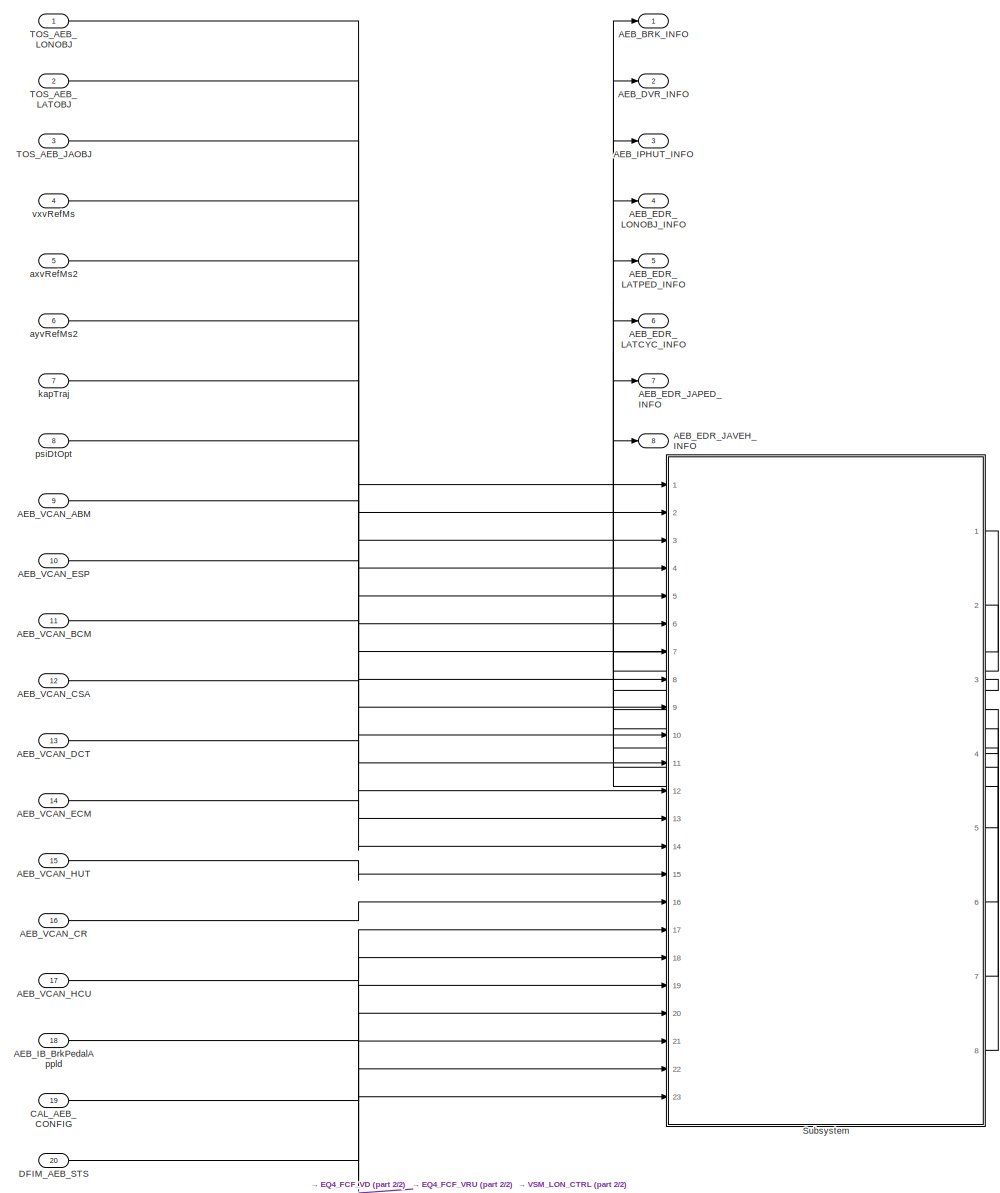
[diagram: root canvas - part 1/2, most of the canvas]
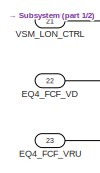
[diagram: root canvas - part 2/2, bottom left region]
MODEL slx_92be8aaa13f4
KIND model
CONFIG AbsTol = auto
CONFIG EnableMultiTasking = off
CONFIG FixedStep = auto
CONFIG InitFcn = , if any(exist('dsmpb_private', 'file') ~= 0), dsmpb_private('dsmpb_mdlclblib', 'Init', bdroot); end,\n
CONFIG MaxStep = auto
CONFIG MinStep = auto
CONFIG PostLoadFcn = if any(exist('dsrtsu_mdlpostloadfcn', 'file') ~= 0), dsrtsu_mdlpostloadfcn('Execute', bdroot); end
CONFIG RelTol = 1e-3
CONFIG SampleTimeConstraint = Unconstrained
CONFIG SolverName = FixedStepAuto
CONFIG StartTime = 0.0
CONFIG StopTime = Inf
BLOCK [Outport] AEB_BRK_INFO
  BusOutputAsStruct = on
  OutDataTypeStr = Bus: AEB_BRK_INFO_BUS
  PortDimensions = 1
BLOCK [Outport] AEB_DVR_INFO
  BusOutputAsStruct = on
  OutDataTypeStr = Bus: AEB_DVR_INFO_BUS
  Port = 2
  PortDimensions = 1
BLOCK [Outport] AEB_EDR_JAPED_INFO
  BusOutputAsStruct = on
  OutDataTypeStr = Bus: AEB_EDR_JAPED_INFO_BUS
  Port = 7
  PortDimensions = 1
BLOCK [Outport] AEB_EDR_JAVEH_INFO
  BusOutputAsStruct = on
  OutDataTypeStr = Bus: AEB_EDR_JAVEH_INFO_BUS
  Port = 8
  PortDimensions = 1
BLOCK [Outport] AEB_EDR_LATCYC_INFO
  BusOutputAsStruct = on
  OutDataTypeStr = Bus: AEB_EDR_LATCYC_INFO_BUS
  Port = 6
  PortDimensions = 1
BLOCK [Outport] AEB_EDR_LATPED_INFO
  BusOutputAsStruct = on
  OutDataTypeStr = Bus: AEB_EDR_LATPED_INFO_BUS
  Port = 5
  PortDimensions = 1
BLOCK [Outport] AEB_EDR_LONOBJ_INFO
  BusOutputAsStruct = on
  OutDataTypeStr = Bus: AEB_EDR_LONOBJ_INFO_BUS
  Port = 4
  PortDimensions = 1
BLOCK [Inport] AEB_IB_BrkPedalAppld
  BusOutputAsStruct = on
  OutDataTypeStr = boolean
  Port = 18
  PortDimensions = 1
BLOCK [Outport] AEB_IPHUT_INFO
  BusOutputAsStruct = on
  OutDataTypeStr = Bus: AEB_IPHUT_INFO_BUS
  Port = 3
  PortDimensions = 1
BLOCK [Inport] AEB_VCAN_ABM
  BusOutputAsStruct = on
  OutDataTypeStr = Bus: AEB_VCAN_ABM_BUS
  Port = 9
  PortDimensions = 1
BLOCK [Inport] AEB_VCAN_BCM
  BusOutputAsStruct = on
  OutDataTypeStr = Bus: AEB_VCAN_BCM_BUS
  Port = 11
  PortDimensions = 1
BLOCK [Inport] AEB_VCAN_CR
  BusOutputAsStruct = on
  OutDataTypeStr = Bus: AEB_VCAN_CR_BUS
  Port = 16
  PortDimensions = 1
BLOCK [Inport] AEB_VCAN_CSA
  BusOutputAsStruct = on
  OutDataTypeStr = Bus: AEB_VCAN_CSA_BUS
  Port = 12
  PortDimensions = 1
BLOCK [Inport] AEB_VCAN_DCT
  BusOutputAsStruct = on
  OutDataTypeStr = Bus: AEB_VCAN_DCT_BUS
  Port = 13
  PortDimensions = 1
BLOCK [Inport] AEB_VCAN_ECM
  BusOutputAsStruct = on
  OutDataTypeStr = Bus: AEB_VCAN_ECM_BUS
  Port = 14
  PortDimensions = 1
BLOCK [Inport] AEB_VCAN_ESP
  BusOutputAsStruct = on
  OutDataTypeStr = Bus: AEB_VCAN_ESP_BUS
  Port = 10
  PortDimensions = 1
BLOCK [Inport] AEB_VCAN_HCU
  BusOutputAsStruct = on
  OutDataTypeStr = Bus: AEB_VCAN_HCU_BUS
  Port = 17
  PortDimensions = 1
BLOCK [Inport] AEB_VCAN_HUT
  BusOutputAsStruct = on
  OutDataTypeStr = Bus: AEB_VCAN_HUT_BUS
  Port = 15
  PortDimensions = 1
BLOCK [Inport] CAL_AEB_CONFIG
  BusOutputAsStruct = on
  OutDataTypeStr = Bus: CAL_AEB_CONFIG_BUS
  Port = 19
  PortDimensions = 1
BLOCK [Inport] DFIM_AEB_STS
  BusOutputAsStruct = on
  OutDataTypeStr = Bus: DFIM_AEB_STS_BUS
  Port = 20
  PortDimensions = 1
BLOCK [Inport] EQ4_FCF_VD
  BusOutputAsStruct = on
  OutDataTypeStr = Bus: EQ4_FCF_VD_BUS
  Port = 22
  PortDimensions = 1
BLOCK [Inport] EQ4_FCF_VRU
  BusOutputAsStruct = on
  OutDataTypeStr = Bus: EQ4_FCF_VRU_BUS
  Port = 23
  PortDimensions = 1
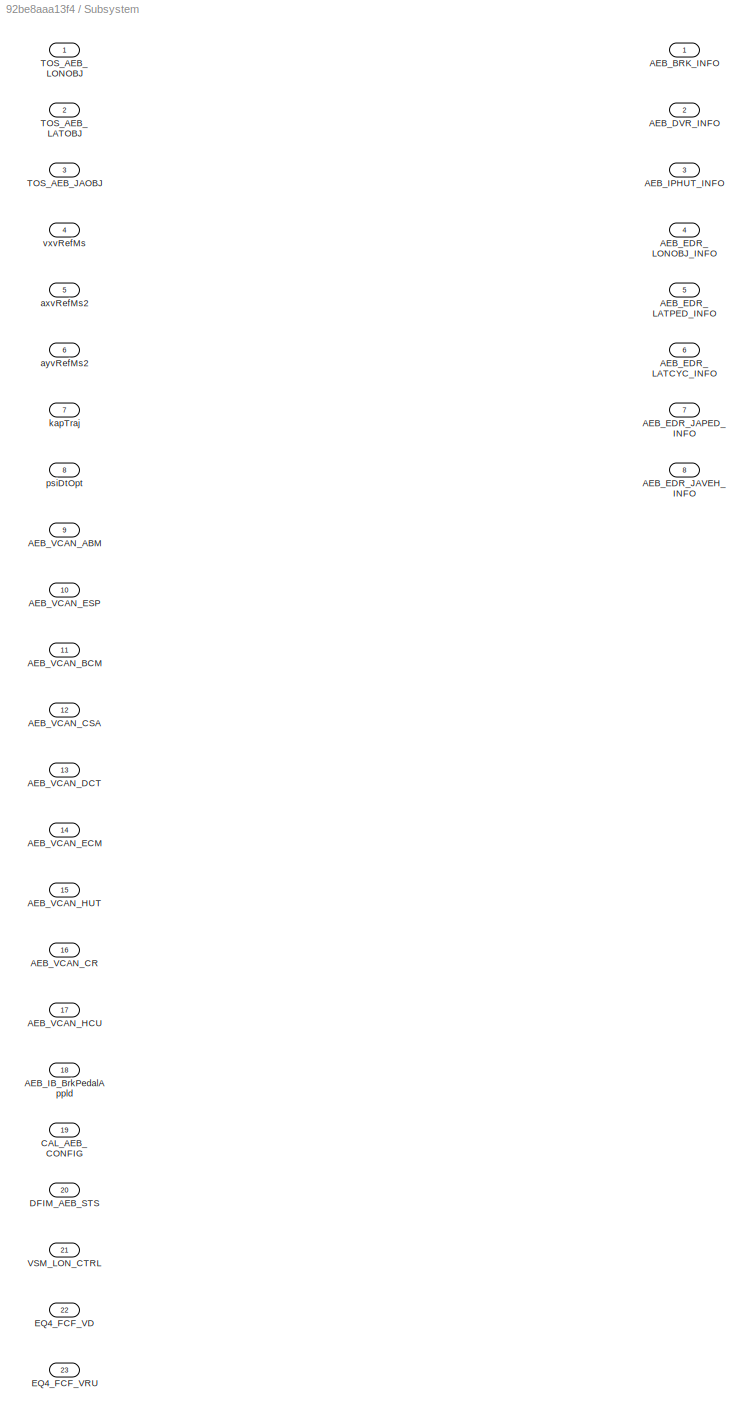
BLOCK [SubSystem] Subsystem
  Ports = [23, 8]
  RequestExecContextInheritance = off
BLOCK [Outport] Subsystem/AEB_BRK_INFO
  BusOutputAsStruct = on
  OutDataTypeStr = Bus: AEB_BRK_INFO_BUS
  PortDimensions = 1
BLOCK [Outport] Subsystem/AEB_DVR_INFO
  BusOutputAsStruct = on
  OutDataTypeStr = Bus: AEB_DVR_INFO_BUS
  Port = 2
  PortDimensions = 1
BLOCK [Outport] Subsystem/AEB_EDR_JAPED_INFO
  BusOutputAsStruct = on
  OutDataTypeStr = Bus: AEB_EDR_JAPED_INFO_BUS
  Port = 7
  PortDimensions = 1
BLOCK [Outport] Subsystem/AEB_EDR_JAVEH_INFO
  BusOutputAsStruct = on
  OutDataTypeStr = Bus: AEB_EDR_JAVEH_INFO_BUS
  Port = 8
  PortDimensions = 1
BLOCK [Outport] Subsystem/AEB_EDR_LATCYC_INFO
  BusOutputAsStruct = on
  OutDataTypeStr = Bus: AEB_EDR_LATCYC_INFO_BUS
  Port = 6
  PortDimensions = 1
BLOCK [Outport] Subsystem/AEB_EDR_LATPED_INFO
  BusOutputAsStruct = on
  OutDataTypeStr = Bus: AEB_EDR_LATPED_INFO_BUS
  Port = 5
  PortDimensions = 1
BLOCK [Outport] Subsystem/AEB_EDR_LONOBJ_INFO
  BusOutputAsStruct = on
  OutDataTypeStr = Bus: AEB_EDR_LONOBJ_INFO_BUS
  Port = 4
  PortDimensions = 1
BLOCK [Inport] Subsystem/AEB_IB_BrkPedalAppld
  BusOutputAsStruct = on
  OutDataTypeStr = boolean
  Port = 18
  PortDimensions = 1
BLOCK [Outport] Subsystem/AEB_IPHUT_INFO
  BusOutputAsStruct = on
  OutDataTypeStr = Bus: AEB_IPHUT_INFO_BUS
  Port = 3
  PortDimensions = 1
BLOCK [Inport] Subsystem/AEB_VCAN_ABM
  BusOutputAsStruct = on
  OutDataTypeStr = Bus: AEB_VCAN_ABM_BUS
  Port = 9
  PortDimensions = 1
BLOCK [Inport] Subsystem/AEB_VCAN_BCM
  BusOutputAsStruct = on
  OutDataTypeStr = Bus: AEB_VCAN_BCM_BUS
  Port = 11
  PortDimensions = 1
BLOCK [Inport] Subsystem/AEB_VCAN_CR
  BusOutputAsStruct = on
  OutDataTypeStr = Bus: AEB_VCAN_CR_BUS
  Port = 16
  PortDimensions = 1
BLOCK [Inport] Subsystem/AEB_VCAN_CSA
  BusOutputAsStruct = on
  OutDataTypeStr = Bus: AEB_VCAN_CSA_BUS
  Port = 12
  PortDimensions = 1
BLOCK [Inport] Subsystem/AEB_VCAN_DCT
  BusOutputAsStruct = on
  OutDataTypeStr = Bus: AEB_VCAN_DCT_BUS
  Port = 13
  PortDimensions = 1
BLOCK [Inport] Subsystem/AEB_VCAN_ECM
  BusOutputAsStruct = on
  OutDataTypeStr = Bus: AEB_VCAN_ECM_BUS
  Port = 14
  PortDimensions = 1
BLOCK [Inport] Subsystem/AEB_VCAN_ESP
  BusOutputAsStruct = on
  OutDataTypeStr = Bus: AEB_VCAN_ESP_BUS
  Port = 10
  PortDimensions = 1
BLOCK [Inport] Subsystem/AEB_VCAN_HCU
  BusOutputAsStruct = on
  OutDataTypeStr = Bus: AEB_VCAN_HCU_BUS
  Port = 17
  PortDimensions = 1
BLOCK [Inport] Subsystem/AEB_VCAN_HUT
  BusOutputAsStruct = on
  OutDataTypeStr = Bus: AEB_VCAN_HUT_BUS
  Port = 15
  PortDimensions = 1
BLOCK [Inport] Subsystem/CAL_AEB_CONFIG
  BusOutputAsStruct = on
  OutDataTypeStr = Bus: CAL_AEB_CONFIG_BUS
  Port = 19
  PortDimensions = 1
BLOCK [Inport] Subsystem/DFIM_AEB_STS
  BusOutputAsStruct = on
  OutDataTypeStr = Bus: DFIM_AEB_STS_BUS
  Port = 20
  PortDimensions = 1
BLOCK [Inport] Subsystem/EQ4_FCF_VD
  BusOutputAsStruct = on
  OutDataTypeStr = Bus: EQ4_FCF_VD_BUS
  Port = 22
  PortDimensions = 1
BLOCK [Inport] Subsystem/EQ4_FCF_VRU
  BusOutputAsStruct = on
  OutDataTypeStr = Bus: EQ4_FCF_VRU_BUS
  Port = 23
  PortDimensions = 1
BLOCK [Inport] Subsystem/TOS_AEB_JAOBJ
  BusOutputAsStruct = on
  OutDataTypeStr = Bus: TOS_AEB_JAOBJ_BUS
  Port = 3
  PortDimensions = 32
BLOCK [Inport] Subsystem/TOS_AEB_LATOBJ
  BusOutputAsStruct = on
  OutDataTypeStr = Bus: TOS_AEB_LATOBJ_BUS
  Port = 2
  PortDimensions = 10
BLOCK [Inport] Subsystem/TOS_AEB_LONOBJ
  BusOutputAsStruct = on
  OutDataTypeStr = Bus: TOS_AEB_LONOBJ_BUS
  PortDimensions = 1
BLOCK [Inport] Subsystem/VSM_LON_CTRL
  BusOutputAsStruct = on
  OutDataTypeStr = Bus: VSM_LON_CTRL_BUS
  Port = 21
  PortDimensions = 1
BLOCK [Inport] Subsystem/axvRefMs2
  BusOutputAsStruct = on
  OutDataTypeStr = single
  Port = 5
  PortDimensions = 1
BLOCK [Inport] Subsystem/ayvRefMs2
  BusOutputAsStruct = on
  OutDataTypeStr = single
  Port = 6
  PortDimensions = 1
BLOCK [Inport] Subsystem/kapTraj
  BusOutputAsStruct = on
  OutDataTypeStr = single
  Port = 7
  PortDimensions = 1
BLOCK [Inport] Subsystem/psiDtOpt
  BusOutputAsStruct = on
  OutDataTypeStr = single
  Port = 8
  PortDimensions = 1
BLOCK [Inport] Subsystem/vxvRefMs
  BusOutputAsStruct = on
  OutDataTypeStr = single
  Port = 4
  PortDimensions = 1
BLOCK [Inport] TOS_AEB_JAOBJ
  BusOutputAsStruct = on
  OutDataTypeStr = Bus: TOS_AEB_JAOBJ_BUS
  Port = 3
  PortDimensions = 32
BLOCK [Inport] TOS_AEB_LATOBJ
  BusOutputAsStruct = on
  OutDataTypeStr = Bus: TOS_AEB_LATOBJ_BUS
  Port = 2
  PortDimensions = 10
BLOCK [Inport] TOS_AEB_LONOBJ
  BusOutputAsStruct = on
  OutDataTypeStr = Bus: TOS_AEB_LONOBJ_BUS
  PortDimensions = 1
BLOCK [Inport] VSM_LON_CTRL
  BusOutputAsStruct = on
  OutDataTypeStr = Bus: VSM_LON_CTRL_BUS
  Port = 21
  PortDimensions = 1
BLOCK [Inport] axvRefMs2
  BusOutputAsStruct = on
  OutDataTypeStr = single
  Port = 5
  PortDimensions = 1
BLOCK [Inport] ayvRefMs2
  BusOutputAsStruct = on
  OutDataTypeStr = single
  Port = 6
  PortDimensions = 1
BLOCK [Inport] kapTraj
  BusOutputAsStruct = on
  OutDataTypeStr = single
  Port = 7
  PortDimensions = 1
BLOCK [Inport] psiDtOpt
  BusOutputAsStruct = on
  OutDataTypeStr = single
  Port = 8
  PortDimensions = 1
BLOCK [Inport] vxvRefMs
  BusOutputAsStruct = on
  OutDataTypeStr = single
  Port = 4
  PortDimensions = 1
LINE AEB_IB_BrkPedalAppld:1 -> Subsystem:18
LINE AEB_VCAN_ABM:1 -> Subsystem:9
LINE AEB_VCAN_BCM:1 -> Subsystem:11
LINE AEB_VCAN_CR:1 -> Subsystem:16
LINE AEB_VCAN_CSA:1 -> Subsystem:12
LINE AEB_VCAN_DCT:1 -> Subsystem:13
LINE AEB_VCAN_ECM:1 -> Subsystem:14
LINE AEB_VCAN_ESP:1 -> Subsystem:10
LINE AEB_VCAN_HCU:1 -> Subsystem:17
LINE AEB_VCAN_HUT:1 -> Subsystem:15
LINE CAL_AEB_CONFIG:1 -> Subsystem:19
LINE DFIM_AEB_STS:1 -> Subsystem:20
LINE EQ4_FCF_VD:1 -> Subsystem:22
LINE EQ4_FCF_VRU:1 -> Subsystem:23
LINE Subsystem:1 -> AEB_BRK_INFO:1
LINE Subsystem:2 -> AEB_DVR_INFO:1
LINE Subsystem:3 -> AEB_IPHUT_INFO:1
LINE Subsystem:4 -> AEB_EDR_LONOBJ_INFO:1
LINE Subsystem:5 -> AEB_EDR_LATPED_INFO:1
LINE Subsystem:6 -> AEB_EDR_LATCYC_INFO:1
LINE Subsystem:7 -> AEB_EDR_JAPED_INFO:1
LINE Subsystem:8 -> AEB_EDR_JAVEH_INFO:1
LINE TOS_AEB_JAOBJ:1 -> Subsystem:3
LINE TOS_AEB_LATOBJ:1 -> Subsystem:2
LINE TOS_AEB_LONOBJ:1 -> Subsystem:1
LINE VSM_LON_CTRL:1 -> Subsystem:21
LINE axvRefMs2:1 -> Subsystem:5
LINE ayvRefMs2:1 -> Subsystem:6
LINE kapTraj:1 -> Subsystem:7
LINE psiDtOpt:1 -> Subsystem:8
LINE vxvRefMs:1 -> Subsystem:4
